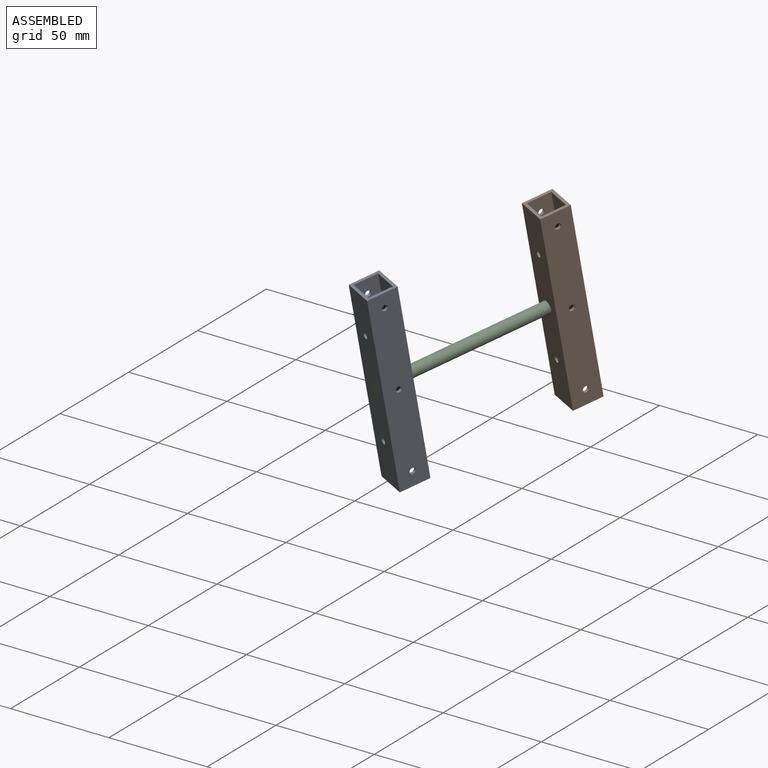
[diagram: assembled view]
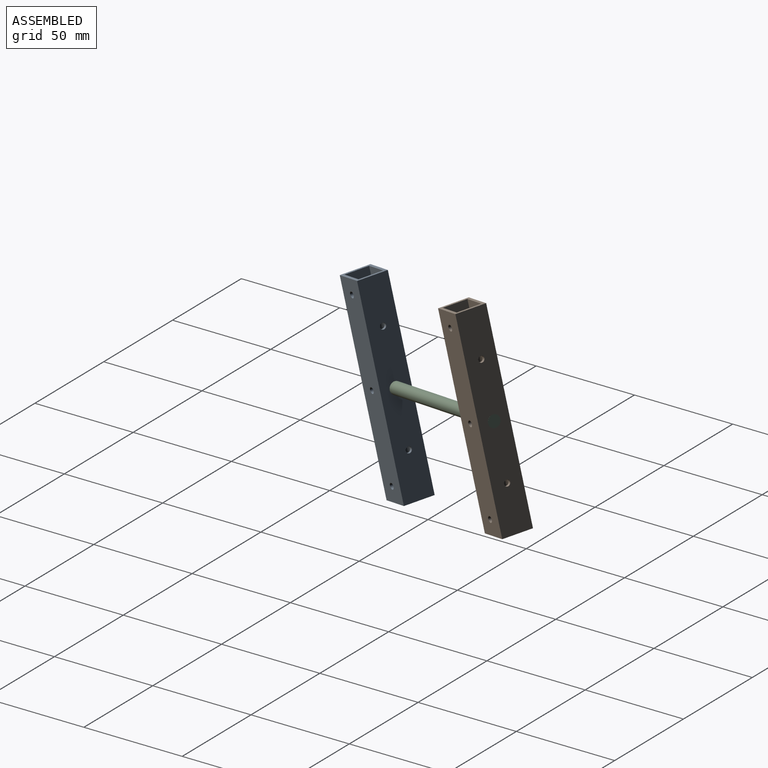
[diagram: assembled view, second angle]
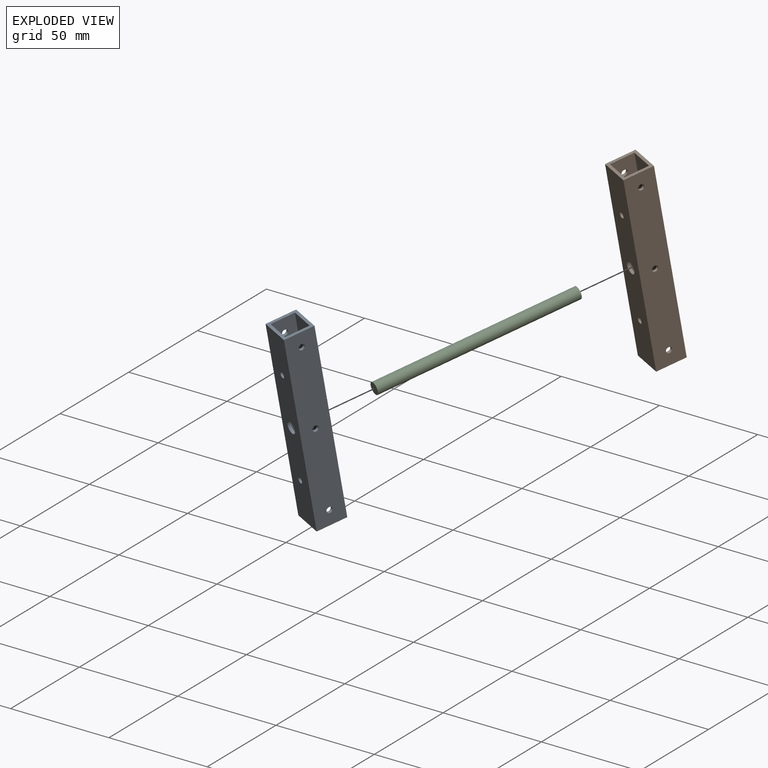
[diagram: exploded view]
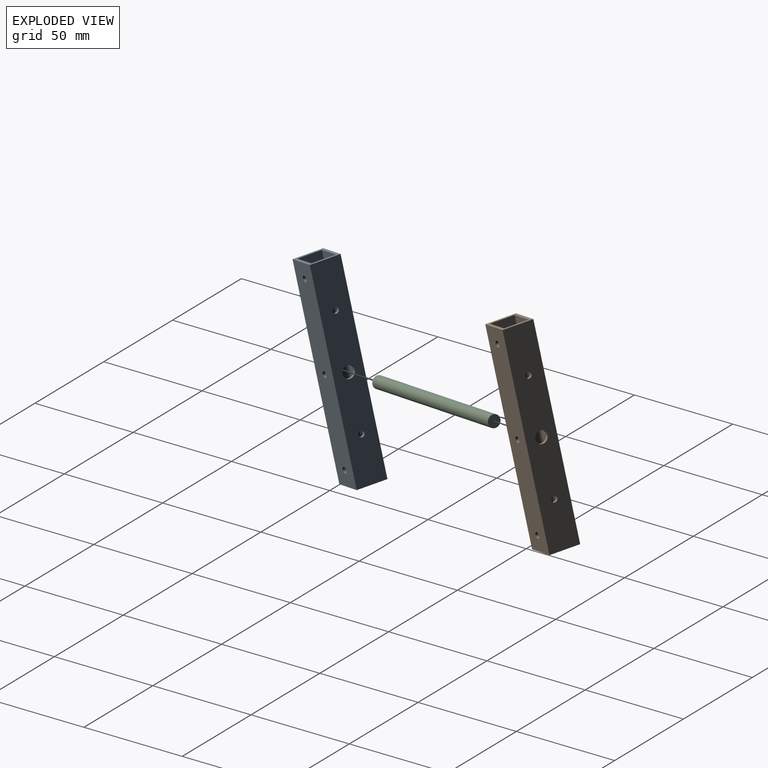
[diagram: exploded view, second angle]
ASSEMBLY  parts=3 mates=4
PART A: 22 faces, bbox 15x100x15 mm
  f0: plane 100x12mm, normal (0,0,-1), area 1178.8mm2, adj f1,f7,f8,f9,f12,f13,f21
  f1: plane 100x12mm, normal (-1,0,0), area 1157.6mm2, adj f0,f2,f8,f9,f16,f17,f19
  f2: plane 100x12mm, normal (0,0,1), area 1178.8mm2, adj f1,f7,f8,f9,f10,f11,f20
  f3: plane 100x15mm, normal (1,0,0), area 1457.6mm2, adj f4,f6,f8,f9,f16,f17,f19
  f4: plane 100x15mm, normal (0,0,1), area 1478.8mm2, adj f3,f5,f8,f9,f12,f13,f21
  f5: plane 100x15mm, normal (-1,0,0), area 1457.6mm2, adj f4,f6,f8,f9,f14,f15,f18
  f6: plane 100x15mm, normal (0,0,-1), area 1478.8mm2, adj f3,f5,f8,f9,f10,f11,f20
  f7: plane 100x12mm, normal (1,0,0), area 1157.6mm2, adj f0,f2,f8,f9,f14,f15,f18
  f8: plane 15x15mm, normal (0,-1,0), area 81mm2, adj f0,f1,f2,f3,f4,f5,f6,f7
  f9: plane 15x15mm, normal (0,1,0), area 81mm2, adj f0,f1,f2,f3,f4,f5,f6,f7
  f10: cylinder r=1.5mm len=3mm, axis (0,0,1), area 14.1mm2, adj f2,f6
  f11: cylinder r=1.5mm len=3mm, axis (0,0,1), area 14.1mm2, adj f2,f6
  f12: cylinder r=1.5mm len=3mm, axis (0,0,1), area 14.1mm2, adj f0,f4
  f13: cylinder r=1.5mm len=3mm, axis (0,0,1), area 14.1mm2, adj f0,f4
  f14: cylinder r=1.5mm len=3mm, axis (1,0,0), area 14.1mm2, adj f5,f7
  f15: cylinder r=1.5mm len=3mm, axis (1,0,0), area 14.1mm2, adj f5,f7
  f16: cylinder r=1.5mm len=3mm, axis (1,0,0), area 14.1mm2, adj f1,f3
  f17: cylinder r=1.5mm len=3mm, axis (1,0,0), area 14.1mm2, adj f1,f3
  f18: cylinder r=3mm len=6mm, axis (1,0,0), area 28.3mm2, adj f5,f7
  f19: cylinder r=3mm len=6mm, axis (1,0,0), area 28.3mm2, adj f1,f3
  f20: cylinder r=1.5mm len=3mm, axis (0,0,1), area 14.1mm2, adj f2,f6
  f21: cylinder r=1.5mm len=3mm, axis (0,0,1), area 14.1mm2, adj f0,f4
PART B: same geometry as A
PART C: 3 faces, bbox 6x100x6 mm
  f0: cylinder r=3mm len=100mm, axis (0,1,0), area 1885mm2, adj f1,f2
  f1: plane 6x6mm, normal (0,-1,0), area 28.3mm2, adj f0
  f2: plane 6x6mm, normal (0,1,0), area 28.3mm2, adj f0
PLACE A rot(axis=(0.45,-0.55,-0.7),141.1deg) t=(-54.85,-151.03,31.65)mm
PLACE B rot(axis=(0.45,-0.55,-0.7),141.1deg) t=(-19.24,-76.08,50.04)mm
PLACE C rot(axis=(0.48,0.11,-0.87),28.3deg) t=(-16.1,-57.55,3.1)mm
MATE parallel C.f0 <-> B.f18  axis (0.42,0.88,0.22) through (-16.1,-57.55,3.1)mm
MATE slider C.f0 <-> B.f18  axis (0.42,0.88,0.22) through (-16.1,-57.55,3.1)mm
MATE slider A.f18 <-> C.f0  axis (-0.42,-0.88,-0.22) through (-57.99,-145.73,-18.53)mm
MATE parallel A.f18 <-> C.f0  axis (-0.42,-0.88,-0.22) through (-57.99,-145.73,-18.53)mm
